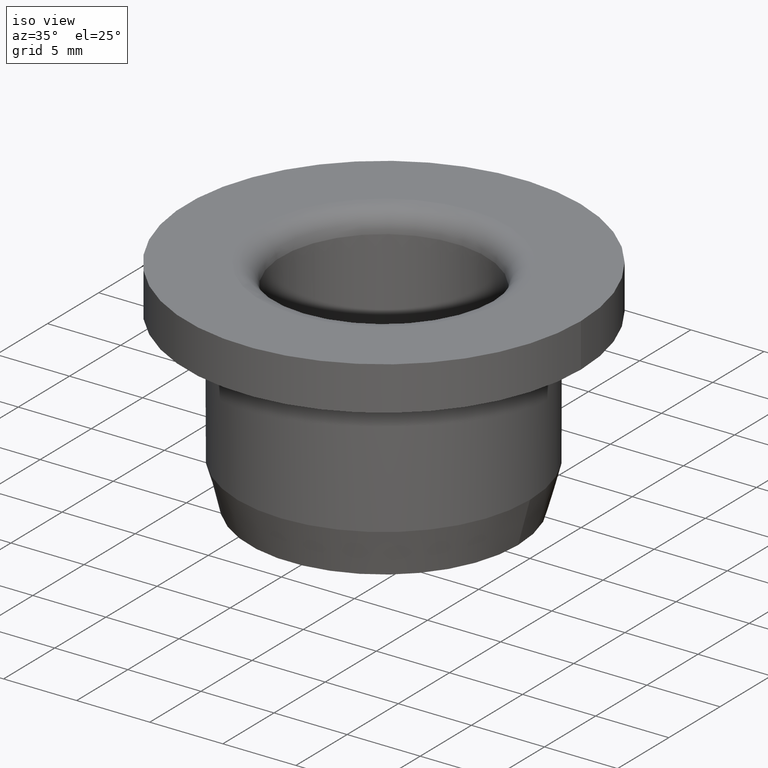
[diagram: clean part render]
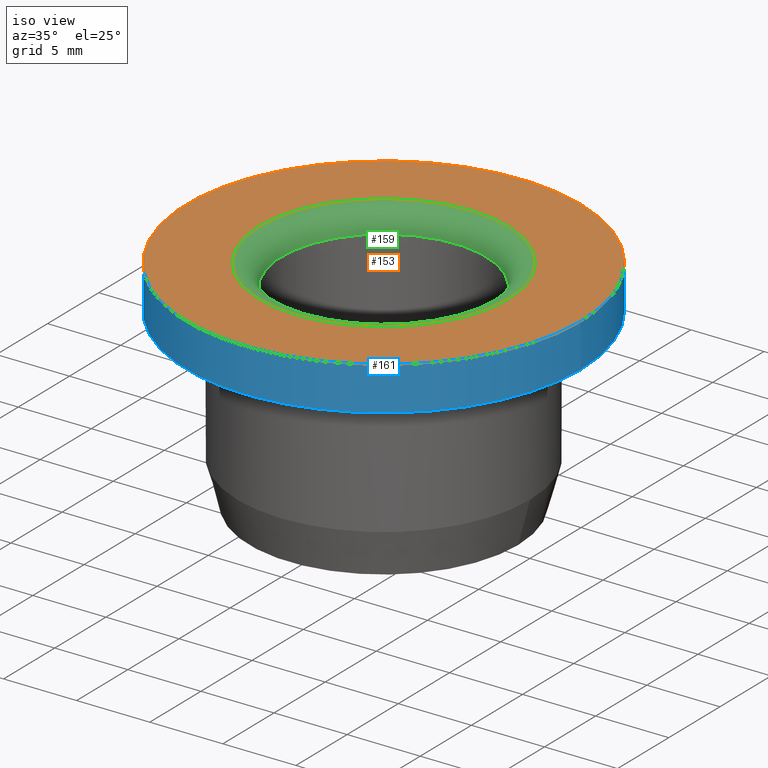
[diagram: same view with three faces highlighted in distinct colors, each labeled with its STEP entity id]
A machine part, iso view with three faces highlighted in distinct colors.
Their STEP definitions:

[orange] entity #153 — the highlighted planar face has unit normal (0, 0, 1).
#153=ADVANCED_FACE('',(#164,#165),#166,.T.);
#164=FACE_BOUND('',#192,.T.);
#165=FACE_OUTER_BOUND('',#193,.T.);
#166=PLANE('',#194);
#192=EDGE_LOOP('',(#219));
#193=EDGE_LOOP('',(#220));
#194=AXIS2_PLACEMENT_3D('',#221,#222,#223);
#219=ORIENTED_EDGE('',*,*,#264,.T.);
#220=ORIENTED_EDGE('',*,*,#265,.F.);
#221=CARTESIAN_POINT('',(0.0135,0.0,0.015));
#222=DIRECTION('',(0.0,6.12323399573677E-017,1.0));
#223=DIRECTION('',(0.0,-1.0,6.12323399573677E-017));
#264=EDGE_CURVE('',#273,#273,#274,.F.);
#265=EDGE_CURVE('',#275,#275,#276,.T.);
#273=VERTEX_POINT('',#291);
#274=CIRCLE('',#292,0.0085);
#275=VERTEX_POINT('',#293);
#276=CIRCLE('',#294,0.0135);
#291=CARTESIAN_POINT('',(0.0,-0.0085,0.015));
#292=AXIS2_PLACEMENT_3D('',#309,#310,#311);
#293=CARTESIAN_POINT('',(0.0135,0.0,0.015));
#294=AXIS2_PLACEMENT_3D('',#312,#313,#314);
#309=CARTESIAN_POINT('',(0.0,9.18485099360515E-019,0.015));
#310=DIRECTION('',(0.0,6.12323399573677E-017,1.0));
#311=DIRECTION('',(0.0,-1.0,6.12323399573677E-017));
#312=CARTESIAN_POINT('',(0.0,0.0,0.015));
#313=DIRECTION('',(0.0,-6.12323399573677E-017,-1.0));
#314=DIRECTION('',(0.0,1.0,-6.12323399573677E-017));

[blue] entity #161 — the highlighted cylindrical surface (bore or boss wall) has radius 13.5 mm, axis along (0, -0, -1).
#161=ADVANCED_FACE('',(#188,#189),#190,.T.);
#188=FACE_OUTER_BOUND('',#216,.T.);
#189=FACE_OUTER_BOUND('',#217,.T.);
#190=CYLINDRICAL_SURFACE('',#218,0.0135);
#216=EDGE_LOOP('',(#259));
#217=EDGE_LOOP('',(#260));
#218=AXIS2_PLACEMENT_3D('',#261,#262,#263);
#259=ORIENTED_EDGE('',*,*,#265,.T.);
#260=ORIENTED_EDGE('',*,*,#269,.F.);
#261=CARTESIAN_POINT('',(0.0,0.0,3.40872898583923E-020));
#262=DIRECTION('',(0.0,-6.12323399573677E-017,-1.0));
#263=DIRECTION('',(0.0,1.0,-6.12323399573677E-017));
#265=EDGE_CURVE('',#275,#275,#276,.T.);
#269=EDGE_CURVE('',#283,#283,#284,.T.);
#275=VERTEX_POINT('',#293);
#276=CIRCLE('',#294,0.0135);
#283=VERTEX_POINT('',#301);
#284=CIRCLE('',#302,0.0135);
#293=CARTESIAN_POINT('',(0.0135,0.0,0.015));
#294=AXIS2_PLACEMENT_3D('',#312,#313,#314);
#301=CARTESIAN_POINT('',(0.0135,0.0,0.012));
#302=AXIS2_PLACEMENT_3D('',#324,#325,#326);
#312=CARTESIAN_POINT('',(0.0,0.0,0.015));
#313=DIRECTION('',(0.0,-6.12323399573677E-017,-1.0));
#314=DIRECTION('',(0.0,1.0,-6.12323399573677E-017));
#324=CARTESIAN_POINT('',(0.0,0.0,0.012));
#325=DIRECTION('',(0.0,-6.12323399573677E-017,-1.0));
#326=DIRECTION('',(0.0,1.0,-6.12323399573677E-017));

[green] entity #159 — the highlighted toroidal blend (fillet) surface has major radius 8.5 mm and minor (blend) radius 1.5 mm.
#159=ADVANCED_FACE('',(#182,#183),#184,.T.);
#182=FACE_OUTER_BOUND('',#210,.T.);
#183=FACE_OUTER_BOUND('',#211,.T.);
#184=TOROIDAL_SURFACE('',#212,0.0085,0.0015);
#210=EDGE_LOOP('',(#249));
#211=EDGE_LOOP('',(#250));
#212=AXIS2_PLACEMENT_3D('',#251,#252,#253);
#249=ORIENTED_EDGE('',*,*,#271,.F.);
#250=ORIENTED_EDGE('',*,*,#264,.F.);
#251=CARTESIAN_POINT('',(0.0,8.26636589424463E-019,0.0135));
#252=DIRECTION('',(0.0,6.12323399573677E-017,1.0));
#253=DIRECTION('',(0.0,-1.0,6.12323399573677E-017));
#264=EDGE_CURVE('',#273,#273,#274,.F.);
#271=EDGE_CURVE('',#287,#287,#288,.T.);
#273=VERTEX_POINT('',#291);
#274=CIRCLE('',#292,0.0085);
#287=VERTEX_POINT('',#305);
#288=CIRCLE('',#306,0.007);
#291=CARTESIAN_POINT('',(0.0,-0.0085,0.015));
#292=AXIS2_PLACEMENT_3D('',#309,#310,#311);
#305=CARTESIAN_POINT('',(0.0,-0.007,0.0135));
#306=AXIS2_PLACEMENT_3D('',#330,#331,#332);
#309=CARTESIAN_POINT('',(0.0,9.18485099360515E-019,0.015));
#310=DIRECTION('',(0.0,6.12323399573677E-017,1.0));
#311=DIRECTION('',(0.0,-1.0,6.12323399573677E-017));
#330=CARTESIAN_POINT('',(0.0,8.26636589424463E-019,0.0135));
#331=DIRECTION('',(0.0,6.12323399573677E-017,1.0));
#332=DIRECTION('',(0.0,-1.0,6.12323399573677E-017));